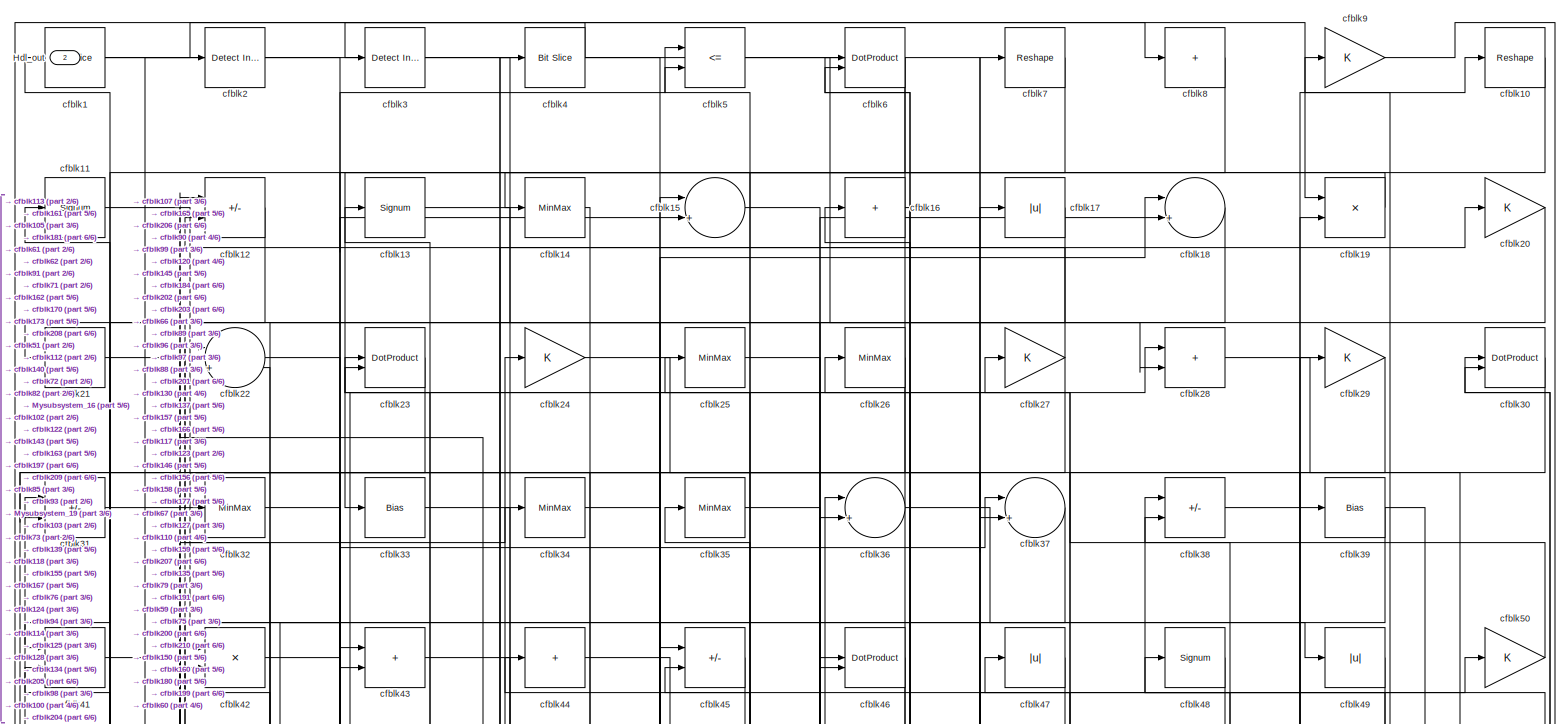
[diagram: root canvas - part 1/6, full width, top band]
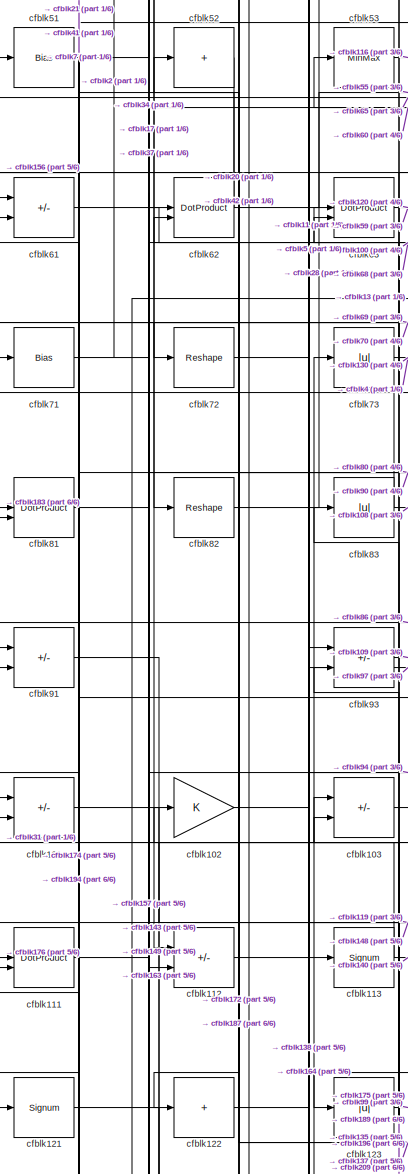
[diagram: root canvas - part 2/6, middle left region]
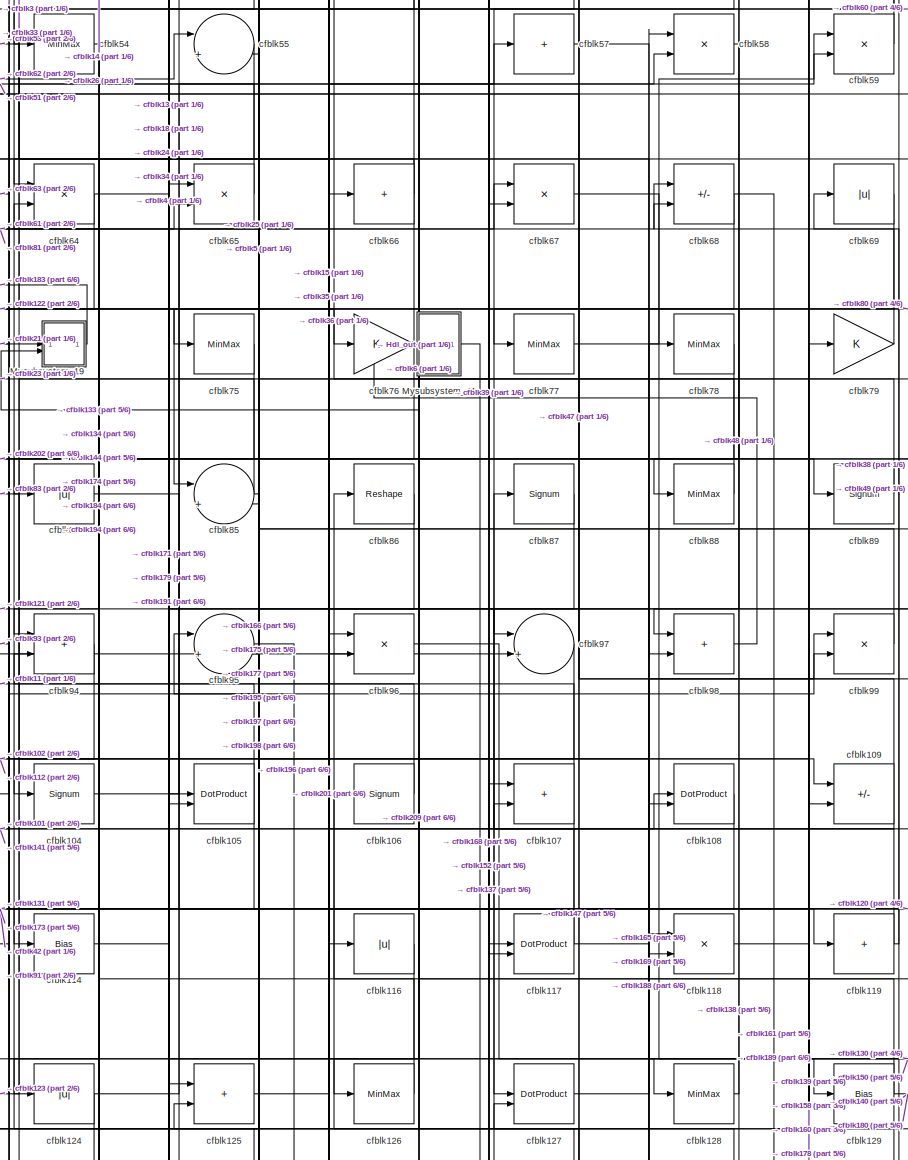
[diagram: root canvas - part 3/6, central region]
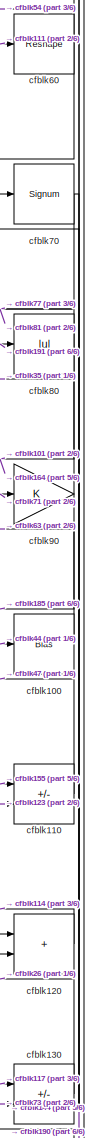
[diagram: root canvas - part 4/6, middle right region]
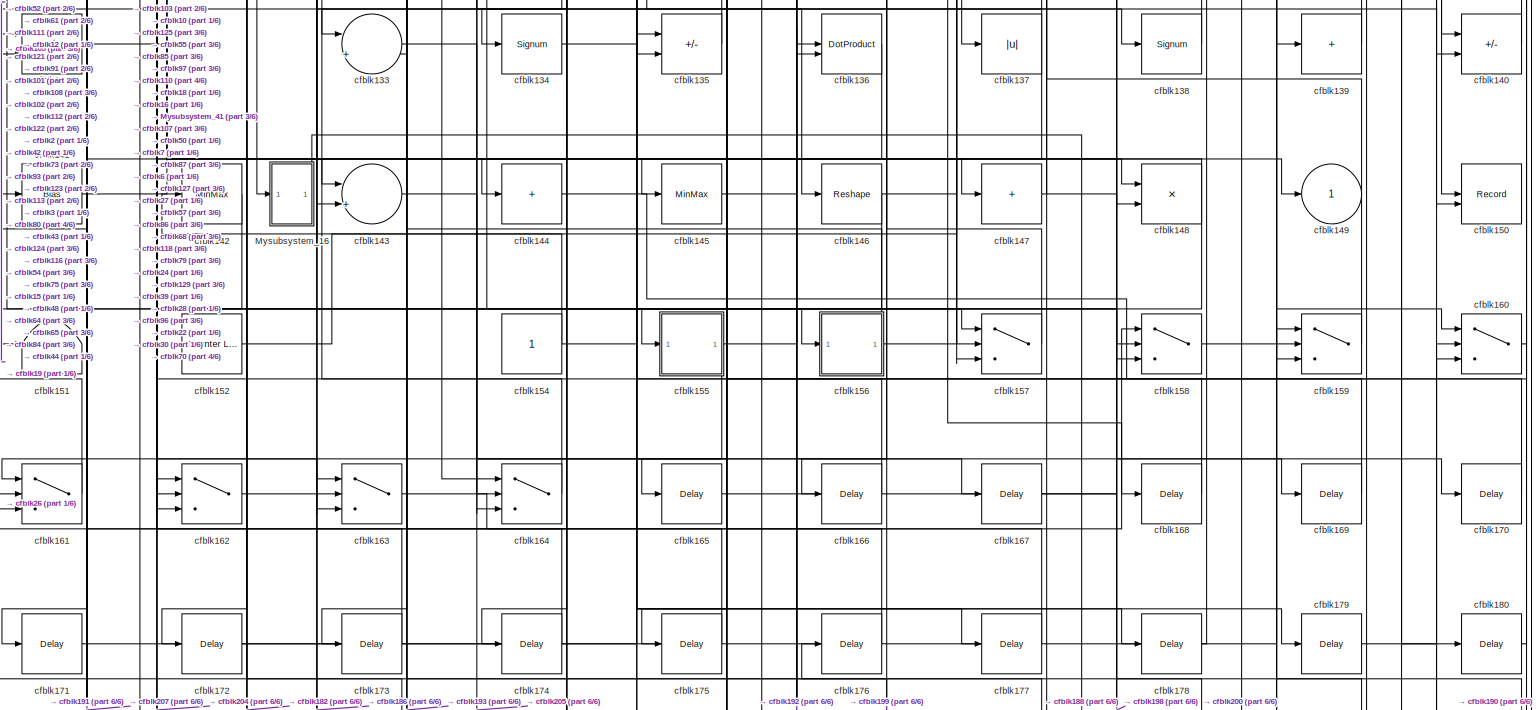
[diagram: root canvas - part 5/6, full width, bottom band]
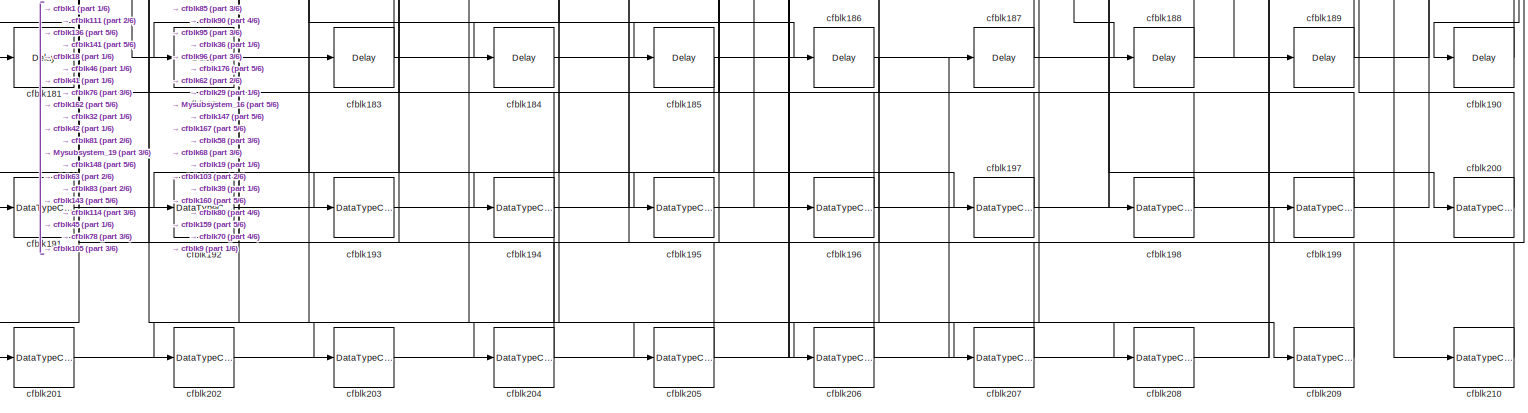
[diagram: root canvas - part 6/6, full width, bottom band]
MODEL slx_f002d62f03bd
KIND model
CONFIG AbsTol = auto
CONFIG EnableMultiTasking = off
CONFIG FixedStep = auto
CONFIG MaxStep = auto
CONFIG MinStep = auto
CONFIG RelTol = 1e-3
CONFIG SampleTimeConstraint = Unconstrained
CONFIG SolverName = VariableStepAuto
CONFIG StartTime = 0.0
CONFIG StopTime = 10.0
BLOCK [Outport] Hdl_out
  OutDataTypeStr = uint8
  Port = 2
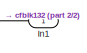
[diagram: Mysubsystem_16 - part 1/2, top right region]
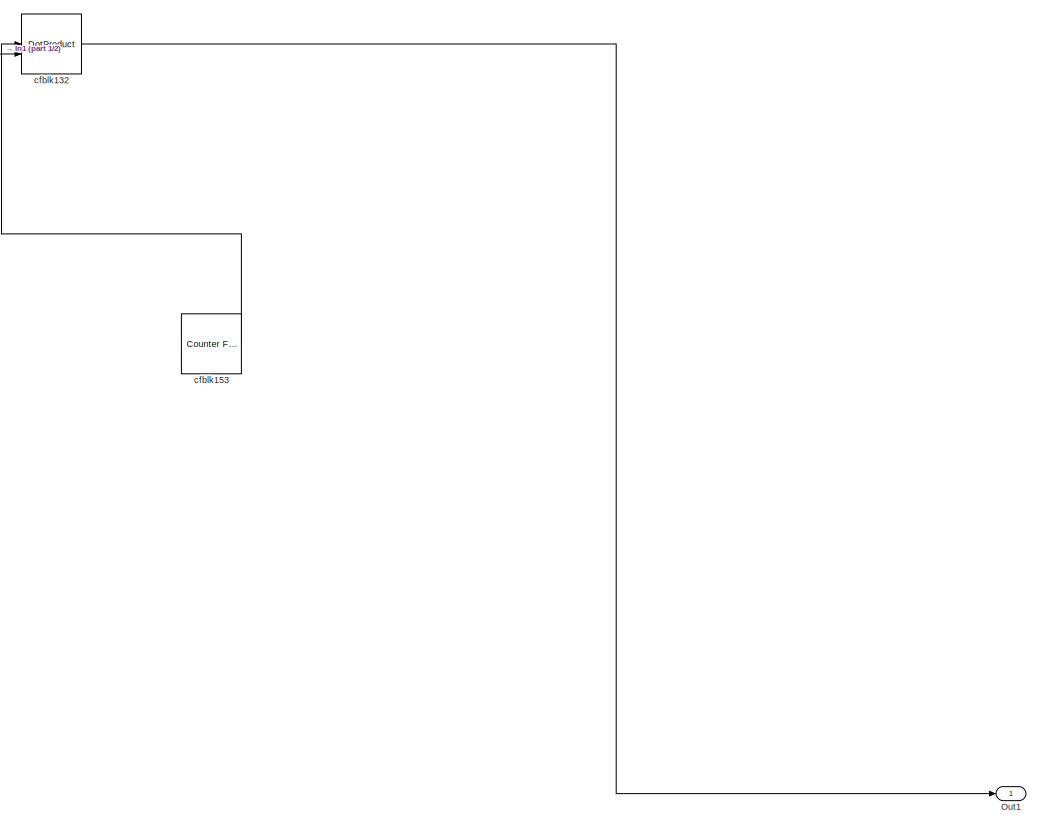
[diagram: Mysubsystem_16 - part 2/2, full width, bottom band]
BLOCK [SubSystem] Mysubsystem_16
  RTWFcnName = Mysubsystem_16
  RTWFcnNameOpts = User specified
  RTWFileNameOpts = Use function name
  RTWSystemCode = Reusable function
  TreatAsAtomicUnit = on
BLOCK [Inport] Mysubsystem_16/In1
BLOCK [Outport] Mysubsystem_16/Out1
BLOCK [DotProduct] Mysubsystem_16/cfblk132
  OutDataTypeStr = Inherit: Inherit via internal rule
BLOCK [Reference] Mysubsystem_16/cfblk153  REF=hdlsllib/Sources/Counter
Free-Running
  SourceBlock = hdlsllib/Sources/Counter\nFree-Running
  SourceType = Counter Free-Running
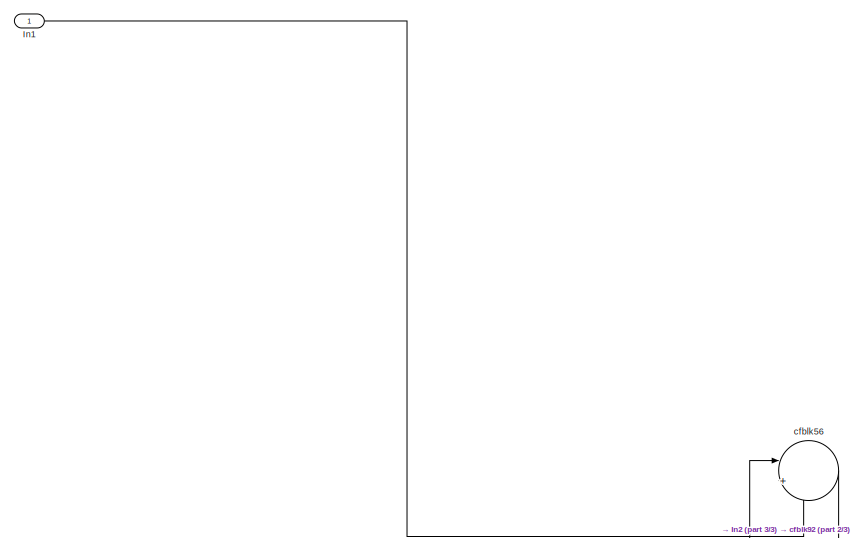
[diagram: Mysubsystem_19 - part 1/3, full width, top band]
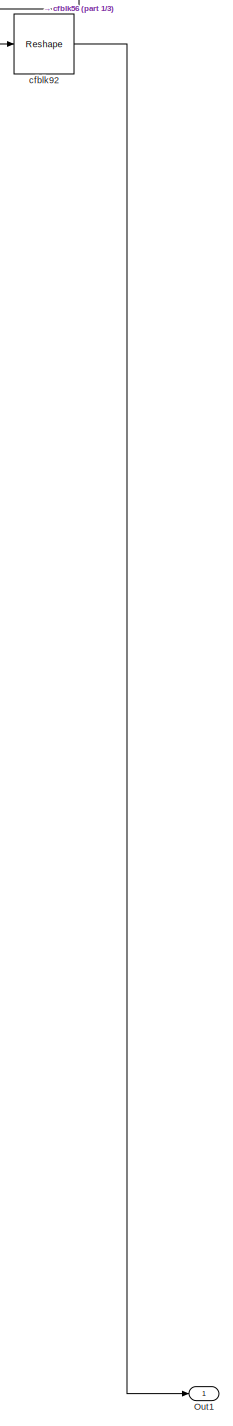
[diagram: Mysubsystem_19 - part 2/3, middle left region]
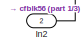
[diagram: Mysubsystem_19 - part 3/3, bottom right region]
BLOCK [SubSystem] Mysubsystem_19
  RTWFcnName = Mysubsystem_19
  RTWFcnNameOpts = User specified
  RTWFileNameOpts = Use function name
  RTWSystemCode = Reusable function
  TreatAsAtomicUnit = on
BLOCK [Inport] Mysubsystem_19/In1
BLOCK [Inport] Mysubsystem_19/In2
  Port = 2
BLOCK [Outport] Mysubsystem_19/Out1
BLOCK [Sum] Mysubsystem_19/cfblk56
  Inputs = |++
BLOCK [Reshape] Mysubsystem_19/cfblk92
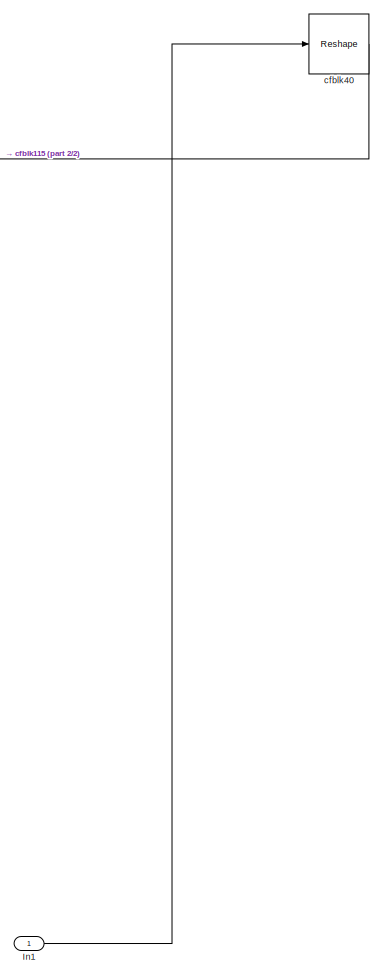
[diagram: Mysubsystem_41 - part 1/2, top right region]
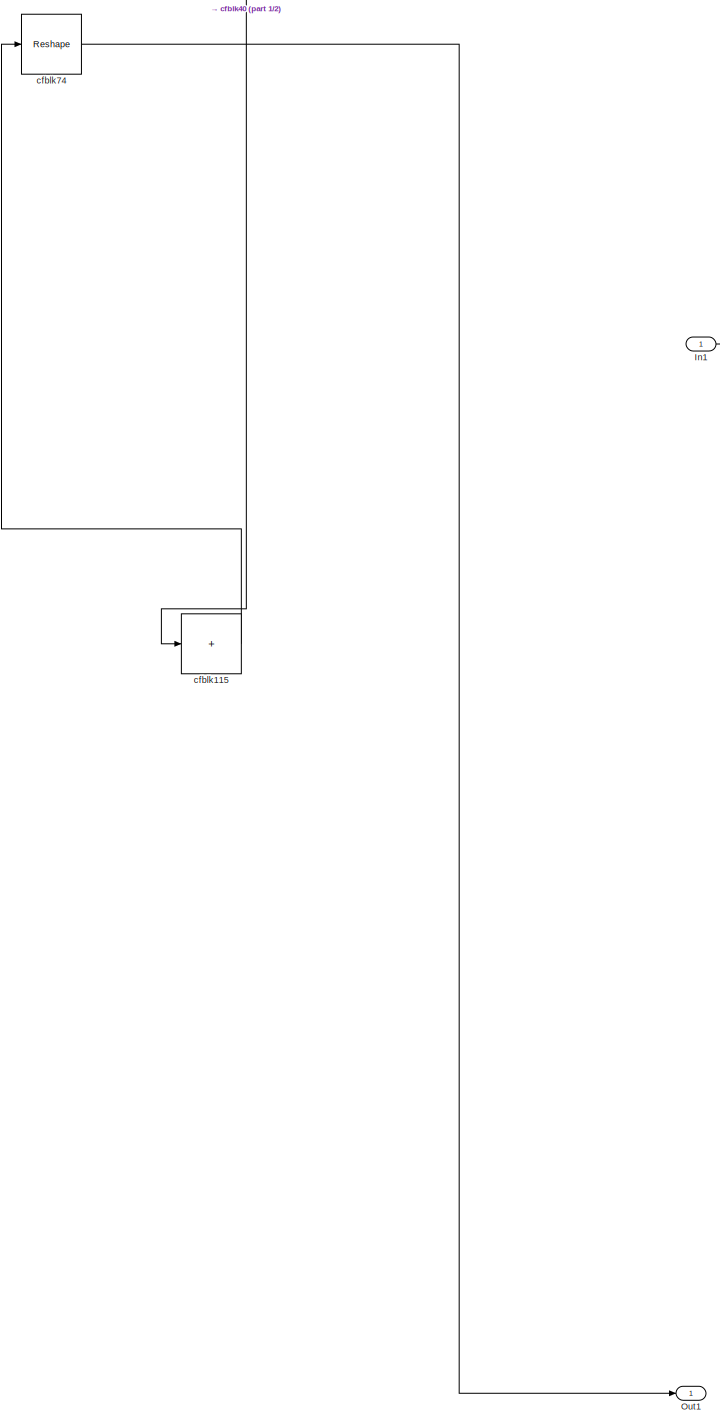
[diagram: Mysubsystem_41 - part 2/2, central region]
BLOCK [SubSystem] Mysubsystem_41
  RTWFcnName = Mysubsystem_41
  RTWFcnNameOpts = User specified
  RTWFileNameOpts = Use function name
  RTWSystemCode = Reusable function
  TreatAsAtomicUnit = on
BLOCK [Inport] Mysubsystem_41/In1
BLOCK [Outport] Mysubsystem_41/Out1
BLOCK [Sum] Mysubsystem_41/cfblk115
  IconShape = rectangular
  Inputs = +
BLOCK [Reshape] Mysubsystem_41/cfblk40
BLOCK [Reshape] Mysubsystem_41/cfblk74
BLOCK [Reference] cfblk1  REF=hdlsllib/Logic and Bit
Operations/Bit Slice
  SourceBlock = hdlsllib/Logic and Bit\nOperations/Bit Slice
  SourceType = Bit Slice
BLOCK [Reshape] cfblk10
BLOCK [Bias] cfblk100
  Bias = 0.0
  SaturateOnIntegerOverflow = off
BLOCK [Sum] cfblk101
  IconShape = rectangular
  Inputs = +-
  OutDataTypeStr = uint8
BLOCK [Gain] cfblk102
  OutDataTypeStr = uint8
BLOCK [Sum] cfblk103
  IconShape = rectangular
  Inputs = +-
  OutDataTypeStr = uint8
BLOCK [Signum] cfblk104
BLOCK [DotProduct] cfblk105
  OutDataTypeStr = uint8
BLOCK [Signum] cfblk106
BLOCK [Sum] cfblk107
  IconShape = rectangular
  OutDataTypeStr = uint8
BLOCK [DotProduct] cfblk108
  OutDataTypeStr = uint8
BLOCK [Sum] cfblk109
  IconShape = rectangular
  Inputs = +-
  OutDataTypeStr = uint8
BLOCK [Signum] cfblk11
BLOCK [Sum] cfblk110
  IconShape = rectangular
  Inputs = +-
  OutDataTypeStr = uint8
BLOCK [DotProduct] cfblk111
  OutDataTypeStr = uint8
BLOCK [Sum] cfblk112
  IconShape = rectangular
  Inputs = +-
  OutDataTypeStr = uint8
BLOCK [Signum] cfblk113
BLOCK [Bias] cfblk114
  Bias = 0.0
  SaturateOnIntegerOverflow = off
BLOCK [Abs] cfblk116
  OutDataTypeStr = uint8
  SaturateOnIntegerOverflow = off
BLOCK [DotProduct] cfblk117
  OutDataTypeStr = uint8
BLOCK [Product] cfblk118
  Inputs = */
  OutDataTypeStr = uint8
  RndMeth = Zero
  SaturateOnIntegerOverflow = on
BLOCK [Sum] cfblk119
  IconShape = rectangular
  Inputs = +
  OutDataTypeStr = uint8
BLOCK [Sum] cfblk12
  IconShape = rectangular
  Inputs = +-
  OutDataTypeStr = uint8
BLOCK [Sum] cfblk120
  IconShape = rectangular
  OutDataTypeStr = uint8
BLOCK [Signum] cfblk121
BLOCK [Sum] cfblk122
  IconShape = rectangular
  Inputs = +
  OutDataTypeStr = uint8
BLOCK [Abs] cfblk123
  OutDataTypeStr = uint8
  SaturateOnIntegerOverflow = off
BLOCK [Abs] cfblk124
  OutDataTypeStr = uint8
  SaturateOnIntegerOverflow = off
BLOCK [Sum] cfblk125
  IconShape = rectangular
  OutDataTypeStr = uint8
BLOCK [MinMax] cfblk126
  OutDataTypeStr = uint8
BLOCK [DotProduct] cfblk127
  OutDataTypeStr = uint8
BLOCK [MinMax] cfblk128
  OutDataTypeStr = uint8
BLOCK [Bias] cfblk129
  Bias = 0.0
  SaturateOnIntegerOverflow = off
BLOCK [Signum] cfblk13
BLOCK [Sum] cfblk130
  IconShape = rectangular
  Inputs = +-
  OutDataTypeStr = uint8
BLOCK [Sum] cfblk131
  IconShape = rectangular
  Inputs = +-
  OutDataTypeStr = uint8
BLOCK [Sum] cfblk133
  Inputs = |++
  OutDataTypeStr = uint8
BLOCK [Signum] cfblk134
BLOCK [Sum] cfblk135
  IconShape = rectangular
  Inputs = +-
  OutDataTypeStr = uint8
BLOCK [DotProduct] cfblk136
  OutDataTypeStr = uint8
BLOCK [Abs] cfblk137
  OutDataTypeStr = uint8
  SaturateOnIntegerOverflow = off
BLOCK [Signum] cfblk138
BLOCK [Sum] cfblk139
  IconShape = rectangular
  Inputs = +
  OutDataTypeStr = uint8
BLOCK [MinMax] cfblk14
  OutDataTypeStr = uint8
BLOCK [Sum] cfblk140
  IconShape = rectangular
  Inputs = +-
  OutDataTypeStr = uint8
BLOCK [Bias] cfblk141
  Bias = 0.0
  SaturateOnIntegerOverflow = off
BLOCK [MinMax] cfblk142
  OutDataTypeStr = uint8
BLOCK [Sum] cfblk143
  Inputs = |++
  OutDataTypeStr = uint8
BLOCK [Sum] cfblk144
  IconShape = rectangular
  Inputs = +
  OutDataTypeStr = uint8
BLOCK [MinMax] cfblk145
  OutDataTypeStr = uint8
BLOCK [Reshape] cfblk146
BLOCK [Sum] cfblk147
  IconShape = rectangular
  Inputs = +
  OutDataTypeStr = uint8
BLOCK [Product] cfblk148
  Inputs = */
  OutDataTypeStr = uint8
  RndMeth = Zero
  SaturateOnIntegerOverflow = on
BLOCK [Outport] cfblk149
  OutDataTypeStr = uint8
  VectorParamsAs1DForOutWhenUnconnected = off
BLOCK [Sum] cfblk15
  Inputs = |++
  OutDataTypeStr = uint8
BLOCK [Record] cfblk150
  CompatibilityTag = XY
  FileSettingsInternal = {"entries":[{"content":{"excelSettings":{"content":{},"type":"Streamout.ExcelSettings"}},"type":"Streamout.FileSettingStorage","uuid":""}],"packageUris":["http:\/\/schema.mathworks.com\/mf0\/streamout_blocks\/R2020a"],"version":"1.0"}
  Layout = [1 1]
  SignalsInternal = {"entries":[{"content":{"signals":[{"content":{"blockPath":[],"dimensions":[1],"domain":"","lineColor":"#a2142f","plots":[1],"port":1,"signalID":61229,"signalName":"cfblk96"},"type":"RecordBlkView.Signal","uuid":""},{"content":{"blockPath":[],"dimensions":[1],"domain":"","lineColor":"#139fff","plots":[1],"port":2,"signalID":61232,"signalName":"cfblk28"},"type":"RecordBlkView.Signal","uuid":""}]},"...<+142ch>
  VisualizationBindings = {"xyplotplugin":{"info":[{"series":[{"bindingParametersList":[{"parameter":"X-Axis","signalID":61229,"signalName":"cfblk96"},{"parameter":"Y-Axis","signalID":61232,"signalName":"cfblk28"}],"seriesID":53168}],"subplotID":1}]}}
  st = -1
BLOCK [Terminator] cfblk151
BLOCK [Reference] cfblk152  REF=hdlsllib/Sources/Counter
Limited
  SourceBlock = hdlsllib/Sources/Counter\nLimited
  SourceType = Counter Limited
BLOCK [Constant] cfblk154
  OutDataTypeStr = uint8
  SampleTime = -1
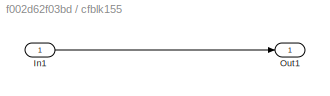
BLOCK [SubSystem] cfblk155
  LibrarySourceBlock = hdlsllib/Ports &\nSubsystems/Subsystem
BLOCK [Inport] cfblk155/In1
BLOCK [Outport] cfblk155/Out1
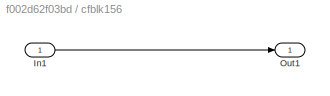
BLOCK [SubSystem] cfblk156
  LibrarySourceBlock = hdlsllib/Ports &\nSubsystems/Subsystem
BLOCK [Inport] cfblk156/In1
BLOCK [Outport] cfblk156/Out1
BLOCK [Switch] cfblk157
  InputSameDT = off
  OutDataTypeStr = uint8
  SaturateOnIntegerOverflow = off
BLOCK [Switch] cfblk158
  InputSameDT = off
  OutDataTypeStr = uint8
  SaturateOnIntegerOverflow = off
BLOCK [Switch] cfblk159
  InputSameDT = off
  OutDataTypeStr = uint8
  SaturateOnIntegerOverflow = off
BLOCK [Sum] cfblk16
  IconShape = rectangular
  Inputs = +
  OutDataTypeStr = uint8
BLOCK [Switch] cfblk160
  InputSameDT = off
  OutDataTypeStr = uint8
  SaturateOnIntegerOverflow = off
BLOCK [Switch] cfblk161
  InputSameDT = off
  OutDataTypeStr = uint8
  SaturateOnIntegerOverflow = off
BLOCK [Switch] cfblk162
  InputSameDT = off
  OutDataTypeStr = uint8
  SaturateOnIntegerOverflow = off
BLOCK [Switch] cfblk163
  InputSameDT = off
  OutDataTypeStr = uint8
  SaturateOnIntegerOverflow = off
BLOCK [Switch] cfblk164
  InputSameDT = off
  OutDataTypeStr = uint8
  SaturateOnIntegerOverflow = off
BLOCK [Delay] cfblk165
  InputPortMap = u0
  SampleTime = 1
BLOCK [Delay] cfblk166
  InputPortMap = u0
  SampleTime = 1
BLOCK [Delay] cfblk167
  InputPortMap = u0
  SampleTime = 1
BLOCK [Delay] cfblk168
  InputPortMap = u0
  SampleTime = 1
BLOCK [Delay] cfblk169
  InputPortMap = u0
  SampleTime = 1
BLOCK [Abs] cfblk17
  OutDataTypeStr = uint8
  SaturateOnIntegerOverflow = off
BLOCK [Delay] cfblk170
  InputPortMap = u0
  SampleTime = 1
BLOCK [Delay] cfblk171
  InputPortMap = u0
  SampleTime = 1
BLOCK [Delay] cfblk172
  InputPortMap = u0
  SampleTime = 1
BLOCK [Delay] cfblk173
  InputPortMap = u0
  SampleTime = 1
BLOCK [Delay] cfblk174
  InputPortMap = u0
  SampleTime = 1
BLOCK [Delay] cfblk175
  InputPortMap = u0
  SampleTime = 1
BLOCK [Delay] cfblk176
  InputPortMap = u0
  SampleTime = 1
BLOCK [Delay] cfblk177
  InputPortMap = u0
  SampleTime = 1
BLOCK [Delay] cfblk178
  InputPortMap = u0
  SampleTime = 1
BLOCK [Delay] cfblk179
  InputPortMap = u0
  SampleTime = 1
BLOCK [Sum] cfblk18
  Inputs = |++
  OutDataTypeStr = uint8
BLOCK [Delay] cfblk180
  InputPortMap = u0
  SampleTime = 1
BLOCK [Delay] cfblk181
  InputPortMap = u0
  SampleTime = 1
BLOCK [Delay] cfblk182
  InputPortMap = u0
  SampleTime = 1
BLOCK [Delay] cfblk183
  InputPortMap = u0
  SampleTime = 1
BLOCK [Delay] cfblk184
  InputPortMap = u0
  SampleTime = 1
BLOCK [Delay] cfblk185
  InputPortMap = u0
  SampleTime = 1
BLOCK [Delay] cfblk186
  InputPortMap = u0
  SampleTime = 1
BLOCK [Delay] cfblk187
  InputPortMap = u0
  SampleTime = 1
BLOCK [Delay] cfblk188
  InputPortMap = u0
  SampleTime = 1
BLOCK [Delay] cfblk189
  InputPortMap = u0
  SampleTime = 1
BLOCK [Product] cfblk19
  Inputs = */
  OutDataTypeStr = uint8
  RndMeth = Zero
  SaturateOnIntegerOverflow = on
BLOCK [Delay] cfblk190
  InputPortMap = u0
  SampleTime = 1
BLOCK [DataTypeConversion] cfblk191
  OutDataTypeStr = uint8
  RndMeth = Floor
  SaturateOnIntegerOverflow = off
BLOCK [DataTypeConversion] cfblk192
  OutDataTypeStr = uint8
  RndMeth = Floor
  SaturateOnIntegerOverflow = off
BLOCK [DataTypeConversion] cfblk193
  OutDataTypeStr = uint8
  RndMeth = Floor
  SaturateOnIntegerOverflow = off
BLOCK [DataTypeConversion] cfblk194
  OutDataTypeStr = uint8
  RndMeth = Floor
  SaturateOnIntegerOverflow = off
BLOCK [DataTypeConversion] cfblk195
  OutDataTypeStr = uint8
  RndMeth = Floor
  SaturateOnIntegerOverflow = off
BLOCK [DataTypeConversion] cfblk196
  OutDataTypeStr = uint8
  RndMeth = Floor
  SaturateOnIntegerOverflow = off
BLOCK [DataTypeConversion] cfblk197
  OutDataTypeStr = uint8
  RndMeth = Floor
  SaturateOnIntegerOverflow = off
BLOCK [DataTypeConversion] cfblk198
  OutDataTypeStr = uint8
  RndMeth = Floor
  SaturateOnIntegerOverflow = off
BLOCK [DataTypeConversion] cfblk199
  OutDataTypeStr = uint8
  RndMeth = Floor
  SaturateOnIntegerOverflow = off
BLOCK [Reference] cfblk2  REF=simulink/Logic and Bit
Operations/Detect
Increase
  LibrarySourceBlock = hdlsllib/Logic and Bit\nOperations/Detect\nIncrease
  SourceBlock = simulink/Logic and Bit\nOperations/Detect\nIncrease
  SourceType = Detect Increase
BLOCK [Gain] cfblk20
  OutDataTypeStr = uint8
BLOCK [DataTypeConversion] cfblk200
  OutDataTypeStr = uint8
  RndMeth = Floor
  SaturateOnIntegerOverflow = off
BLOCK [DataTypeConversion] cfblk201
  OutDataTypeStr = uint8
  RndMeth = Floor
  SaturateOnIntegerOverflow = off
BLOCK [DataTypeConversion] cfblk202
  OutDataTypeStr = uint8
  RndMeth = Floor
  SaturateOnIntegerOverflow = off
BLOCK [DataTypeConversion] cfblk203
  OutDataTypeStr = uint8
  RndMeth = Floor
  SaturateOnIntegerOverflow = off
BLOCK [DataTypeConversion] cfblk204
  OutDataTypeStr = uint8
  RndMeth = Floor
  SaturateOnIntegerOverflow = off
BLOCK [DataTypeConversion] cfblk205
  OutDataTypeStr = uint8
  RndMeth = Floor
  SaturateOnIntegerOverflow = off
BLOCK [DataTypeConversion] cfblk206
  OutDataTypeStr = uint8
  RndMeth = Floor
  SaturateOnIntegerOverflow = off
BLOCK [DataTypeConversion] cfblk207
  OutDataTypeStr = uint8
  RndMeth = Floor
  SaturateOnIntegerOverflow = off
BLOCK [DataTypeConversion] cfblk208
  OutDataTypeStr = uint8
  RndMeth = Floor
  SaturateOnIntegerOverflow = off
BLOCK [DataTypeConversion] cfblk209
  OutDataTypeStr = uint8
  RndMeth = Floor
  SaturateOnIntegerOverflow = off
BLOCK [Sum] cfblk21
  IconShape = rectangular
  Inputs = +
  OutDataTypeStr = uint8
BLOCK [DataTypeConversion] cfblk210
  OutDataTypeStr = uint8
  RndMeth = Floor
  SaturateOnIntegerOverflow = off
BLOCK [Sum] cfblk22
  Inputs = |++
  OutDataTypeStr = uint8
BLOCK [DotProduct] cfblk23
  OutDataTypeStr = uint8
BLOCK [Gain] cfblk24
  OutDataTypeStr = uint8
BLOCK [MinMax] cfblk25
  OutDataTypeStr = uint8
BLOCK [MinMax] cfblk26
  OutDataTypeStr = uint8
BLOCK [Gain] cfblk27
  OutDataTypeStr = uint8
BLOCK [Sum] cfblk28
  IconShape = rectangular
  OutDataTypeStr = uint8
BLOCK [Gain] cfblk29
  OutDataTypeStr = uint8
BLOCK [Reference] cfblk3  REF=simulink/Logic and Bit
Operations/Detect
Increase
  LibrarySourceBlock = hdlsllib/Logic and Bit\nOperations/Detect\nIncrease
  SourceBlock = simulink/Logic and Bit\nOperations/Detect\nIncrease
  SourceType = Detect Increase
BLOCK [DotProduct] cfblk30
  OutDataTypeStr = uint8
BLOCK [Sum] cfblk31
  IconShape = rectangular
  Inputs = +-
  OutDataTypeStr = uint8
BLOCK [MinMax] cfblk32
  OutDataTypeStr = uint8
BLOCK [Bias] cfblk33
  Bias = 0.0
  SaturateOnIntegerOverflow = off
BLOCK [MinMax] cfblk34
  OutDataTypeStr = uint8
BLOCK [MinMax] cfblk35
  OutDataTypeStr = uint8
BLOCK [Sum] cfblk36
  Inputs = |++
  OutDataTypeStr = uint8
BLOCK [Sum] cfblk37
  Inputs = |++
  OutDataTypeStr = uint8
BLOCK [Sum] cfblk38
  IconShape = rectangular
  Inputs = +-
  OutDataTypeStr = uint8
BLOCK [Bias] cfblk39
  Bias = 0.0
  SaturateOnIntegerOverflow = off
BLOCK [Reference] cfblk4  REF=hdlsllib/Logic and Bit
Operations/Bit Slice
  SourceBlock = hdlsllib/Logic and Bit\nOperations/Bit Slice
  SourceType = Bit Slice
BLOCK [Sum] cfblk41
  IconShape = rectangular
  OutDataTypeStr = uint8
BLOCK [Product] cfblk42
  Inputs = */
  OutDataTypeStr = uint8
  RndMeth = Zero
  SaturateOnIntegerOverflow = on
BLOCK [Sum] cfblk43
  IconShape = rectangular
  OutDataTypeStr = uint8
BLOCK [Sum] cfblk44
  IconShape = rectangular
  Inputs = +
  OutDataTypeStr = uint8
BLOCK [Sum] cfblk45
  IconShape = rectangular
  Inputs = +-
  OutDataTypeStr = uint8
BLOCK [DotProduct] cfblk46
  OutDataTypeStr = uint8
BLOCK [Abs] cfblk47
  OutDataTypeStr = uint8
  SaturateOnIntegerOverflow = off
BLOCK [Signum] cfblk48
BLOCK [Abs] cfblk49
  OutDataTypeStr = uint8
  SaturateOnIntegerOverflow = off
BLOCK [RelationalOperator] cfblk5
  InputSameDT = off
  Operator = <=
  OutDataTypeStr = boolean
BLOCK [Gain] cfblk50
  OutDataTypeStr = uint8
BLOCK [Bias] cfblk51
  Bias = 0.0
  SaturateOnIntegerOverflow = off
BLOCK [Sum] cfblk52
  IconShape = rectangular
  Inputs = +
  OutDataTypeStr = uint8
BLOCK [MinMax] cfblk53
  OutDataTypeStr = uint8
BLOCK [MinMax] cfblk54
  OutDataTypeStr = uint8
BLOCK [Sum] cfblk55
  Inputs = |++
  OutDataTypeStr = uint8
BLOCK [Sum] cfblk57
  IconShape = rectangular
  Inputs = +
  OutDataTypeStr = uint8
BLOCK [Product] cfblk58
  Inputs = */
  OutDataTypeStr = uint8
  RndMeth = Zero
  SaturateOnIntegerOverflow = on
BLOCK [Product] cfblk59
  Inputs = */
  OutDataTypeStr = uint8
  RndMeth = Zero
  SaturateOnIntegerOverflow = on
BLOCK [DotProduct] cfblk6
  OutDataTypeStr = uint8
BLOCK [Reshape] cfblk60
BLOCK [Sum] cfblk61
  IconShape = rectangular
  Inputs = +-
  OutDataTypeStr = uint8
BLOCK [DotProduct] cfblk62
  OutDataTypeStr = uint8
BLOCK [DotProduct] cfblk63
  OutDataTypeStr = uint8
BLOCK [Product] cfblk64
  Inputs = */
  OutDataTypeStr = uint8
  RndMeth = Zero
  SaturateOnIntegerOverflow = on
BLOCK [Product] cfblk65
  Inputs = */
  OutDataTypeStr = uint8
  RndMeth = Zero
  SaturateOnIntegerOverflow = on
BLOCK [Sum] cfblk66
  IconShape = rectangular
  Inputs = +
  OutDataTypeStr = uint8
BLOCK [Product] cfblk67
  Inputs = */
  OutDataTypeStr = uint8
  RndMeth = Zero
  SaturateOnIntegerOverflow = on
BLOCK [Sum] cfblk68
  IconShape = rectangular
  Inputs = +-
  OutDataTypeStr = uint8
BLOCK [Abs] cfblk69
  OutDataTypeStr = uint8
  SaturateOnIntegerOverflow = off
BLOCK [Reshape] cfblk7
BLOCK [Signum] cfblk70
BLOCK [Bias] cfblk71
  Bias = 0.0
  SaturateOnIntegerOverflow = off
BLOCK [Reshape] cfblk72
BLOCK [Abs] cfblk73
  OutDataTypeStr = uint8
  SaturateOnIntegerOverflow = off
BLOCK [MinMax] cfblk75
  OutDataTypeStr = uint8
BLOCK [Gain] cfblk76
  OutDataTypeStr = uint8
BLOCK [MinMax] cfblk77
  OutDataTypeStr = uint8
BLOCK [MinMax] cfblk78
  OutDataTypeStr = uint8
BLOCK [Gain] cfblk79
  OutDataTypeStr = uint8
BLOCK [Sum] cfblk8
  IconShape = rectangular
  Inputs = +
  OutDataTypeStr = uint8
BLOCK [Abs] cfblk80
  OutDataTypeStr = uint8
  SaturateOnIntegerOverflow = off
BLOCK [DotProduct] cfblk81
  OutDataTypeStr = uint8
BLOCK [Reshape] cfblk82
BLOCK [Abs] cfblk83
  OutDataTypeStr = uint8
  SaturateOnIntegerOverflow = off
BLOCK [Abs] cfblk84
  OutDataTypeStr = uint8
  SaturateOnIntegerOverflow = off
BLOCK [Sum] cfblk85
  Inputs = |++
  OutDataTypeStr = uint8
BLOCK [Reshape] cfblk86
BLOCK [Signum] cfblk87
BLOCK [MinMax] cfblk88
  OutDataTypeStr = uint8
BLOCK [Signum] cfblk89
BLOCK [Gain] cfblk9
  OutDataTypeStr = uint8
BLOCK [Gain] cfblk90
  OutDataTypeStr = uint8
BLOCK [Sum] cfblk91
  IconShape = rectangular
  Inputs = +-
  OutDataTypeStr = uint8
BLOCK [Sum] cfblk93
  IconShape = rectangular
  Inputs = +-
  OutDataTypeStr = uint8
BLOCK [Sum] cfblk94
  IconShape = rectangular
  OutDataTypeStr = uint8
BLOCK [Sum] cfblk95
  Inputs = |++
  OutDataTypeStr = uint8
BLOCK [Product] cfblk96
  Inputs = */
  OutDataTypeStr = uint8
  RndMeth = Zero
  SaturateOnIntegerOverflow = on
BLOCK [Sum] cfblk97
  Inputs = |++
  OutDataTypeStr = uint8
BLOCK [Sum] cfblk98
  IconShape = rectangular
  OutDataTypeStr = uint8
BLOCK [Product] cfblk99
  Inputs = */
  OutDataTypeStr = uint8
  RndMeth = Zero
  SaturateOnIntegerOverflow = on
LINE Mysubsystem_16/In1:1 -> Mysubsystem_16/cfblk132:2
LINE Mysubsystem_16/cfblk132:1 -> Mysubsystem_16/Out1:1
LINE Mysubsystem_16/cfblk153:1 -> Mysubsystem_16/cfblk132:1
LINE Mysubsystem_16:1 -> cfblk188:1
LINE Mysubsystem_19/In1:1 -> Mysubsystem_19/cfblk56:2
LINE Mysubsystem_19/In2:1 -> Mysubsystem_19/cfblk56:1
LINE Mysubsystem_19/cfblk56:1 -> Mysubsystem_19/cfblk92:1
LINE Mysubsystem_19/cfblk92:1 -> Mysubsystem_19/Out1:1
LINE Mysubsystem_19:1 -> cfblk183:1
LINE Mysubsystem_41/In1:1 -> Mysubsystem_41/cfblk40:1
LINE Mysubsystem_41/cfblk115:1 -> Mysubsystem_41/cfblk74:1
LINE Mysubsystem_41/cfblk40:1 -> Mysubsystem_41/cfblk115:1
LINE Mysubsystem_41/cfblk74:1 -> Mysubsystem_41/Out1:1
LINE Mysubsystem_41:1 -> cfblk168:1
LINE cfblk100:1 -> cfblk63:1
LINE cfblk101:1 -> cfblk143:1
NET cfblk102:1 -> cfblk109:1, cfblk172:1, cfblk37:1, cfblk97:2
LINE cfblk103:1 -> cfblk20:1
LINE cfblk104:1 -> cfblk67:1
NET cfblk105:1 -> cfblk11:1, cfblk131:2
LINE cfblk106:1 -> cfblk94:2
NET cfblk107:1 -> cfblk173:1, cfblk25:1
LINE cfblk108:1 -> cfblk126:1
NET cfblk109:1 -> cfblk107:2, cfblk53:1
LINE cfblk10:1 -> cfblk165:1
LINE cfblk110:1 -> cfblk47:1
NET cfblk111:1 -> cfblk157:1, cfblk60:1
LINE cfblk112:1 -> cfblk138:1
NET cfblk113:1 -> cfblk140:2, cfblk31:1
NET cfblk114:1 -> cfblk184:1, cfblk18:1
NET cfblk116:1 -> cfblk133:2, cfblk174:1
NET cfblk117:1 -> cfblk130:1, cfblk87:1
LINE cfblk118:1 -> cfblk160:1
NET cfblk119:1 -> cfblk101:2, cfblk69:1
NET cfblk11:1 -> cfblk113:1, cfblk37:2
LINE cfblk120:1 -> cfblk114:1
NET cfblk121:1 -> cfblk149:1, cfblk163:3
NET cfblk122:1 -> cfblk148:2, cfblk5:2
NET cfblk123:1 -> cfblk164:1, cfblk17:1, cfblk99:2
NET cfblk124:1 -> cfblk133:1, cfblk57:1
LINE cfblk125:1 -> cfblk58:2
LINE cfblk126:1 -> cfblk106:1
LINE cfblk127:1 -> cfblk99:1
LINE cfblk128:1 -> cfblk48:1
NET cfblk129:1 -> cfblk140:1, cfblk180:1, cfblk64:2
LINE cfblk12:1 -> cfblk21:1
LINE cfblk130:1 -> cfblk26:1
LINE cfblk131:1 -> cfblk147:1
LINE cfblk133:1 -> cfblk170:1
NET cfblk134:1 -> cfblk158:2, cfblk15:1
LINE cfblk135:1 -> cfblk103:1
LINE cfblk136:1 -> cfblk191:1
NET cfblk137:1 -> cfblk131:1, cfblk157:3, cfblk52:1, cfblk6:2
LINE cfblk138:1 -> cfblk86:1
LINE cfblk139:1 -> cfblk24:1
LINE cfblk13:1 -> cfblk125:1
LINE cfblk140:1 -> cfblk22:2
LINE cfblk141:1 -> cfblk108:1
LINE cfblk142:1 -> cfblk151:1
LINE cfblk143:1 -> cfblk205:1
LINE cfblk144:1 -> cfblk70:1
LINE cfblk145:1 -> cfblk18:2
NET cfblk146:1 -> cfblk162:3, cfblk7:1
NET cfblk147:1 -> cfblk127:2, cfblk200:1
NET cfblk148:1 -> cfblk145:1, cfblk182:1, cfblk193:1
LINE cfblk14:1 -> cfblk94:1
LINE cfblk152:1 -> cfblk107:1
NET cfblk154:1 -> cfblk142:1, cfblk157:2
LINE cfblk155/In1:1 -> cfblk155/Out1:1
NET cfblk155:1 -> cfblk110:1, cfblk161:1, cfblk164:3
LINE cfblk156/In1:1 -> cfblk156/Out1:1
NET cfblk156:1 -> cfblk102:1, cfblk50:1
LINE cfblk157:1 -> cfblk16:1
LINE cfblk158:1 -> cfblk79:1
LINE cfblk159:1 -> cfblk27:1
LINE cfblk15:1 -> cfblk66:1
LINE cfblk160:1 -> cfblk30:1
LINE cfblk161:1 -> cfblk19:1
LINE cfblk162:1 -> cfblk186:1
LINE cfblk163:1 -> cfblk158:1
LINE cfblk164:1 -> cfblk73:1
LINE cfblk165:1 -> cfblk118:2
LINE cfblk166:1 -> cfblk125:2
LINE cfblk167:1 -> cfblk198:1
LINE cfblk168:1 -> cfblk135:1
LINE cfblk169:1 -> cfblk85:2
LINE cfblk16:1 -> cfblk166:1
LINE cfblk170:1 -> cfblk42:1
LINE cfblk171:1 -> cfblk65:1
LINE cfblk172:1 -> cfblk159:1
LINE cfblk173:1 -> cfblk12:1
LINE cfblk174:1 -> cfblk61:2
LINE cfblk175:1 -> cfblk93:2
LINE cfblk176:1 -> cfblk111:1
LINE cfblk177:1 -> cfblk55:2
LINE cfblk178:1 -> cfblk68:2
LINE cfblk179:1 -> cfblk160:3
LINE cfblk17:1 -> cfblk82:1
LINE cfblk180:1 -> cfblk30:2
LINE cfblk181:1 -> cfblk1:1
LINE cfblk182:1 -> cfblk160:2
LINE cfblk183:1 -> cfblk81:1
LINE cfblk184:1 -> cfblk36:2
LINE cfblk185:1 -> cfblk192:1
LINE cfblk186:1 -> cfblk206:1
LINE cfblk187:1 -> cfblk62:2
LINE cfblk188:1 -> cfblk58:1
LINE cfblk189:1 -> cfblk103:2
NET cfblk18:1 -> cfblk181:1, cfblk96:2
LINE cfblk190:1 -> cfblk159:2
NET cfblk191:1 -> cfblk105:1, cfblk105:2, cfblk39:1, cfblk80:1
LINE cfblk192:1 -> cfblk136:1
LINE cfblk193:1 -> cfblk136:2
NET cfblk194:1 -> cfblk111:2, cfblk203:1
LINE cfblk195:1 -> cfblk78:1
NET cfblk196:1 -> cfblk62:1, cfblk63:2
LINE cfblk197:1 -> cfblk95:1
LINE cfblk198:1 -> cfblk95:2
LINE cfblk199:1 -> cfblk176:1
LINE cfblk19:1 -> cfblk14:1
LINE cfblk1:1 -> cfblk8:1
LINE cfblk200:1 -> cfblk9:1
NET cfblk201:1 -> cfblk19:2, cfblk96:1
LINE cfblk202:1 -> cfblk46:1
LINE cfblk203:1 -> cfblk46:2
NET cfblk204:1 -> cfblk162:1, cfblk187:1
LINE cfblk205:1 -> cfblk45:1
LINE cfblk206:1 -> cfblk45:2
LINE cfblk207:1 -> cfblk141:1
LINE cfblk208:1 -> cfblk29:1
NET cfblk209:1 -> Mysubsystem_19:2, cfblk83:1
LINE cfblk20:1 -> cfblk72:1
LINE cfblk210:1 -> cfblk32:1
NET cfblk21:1 -> Mysubsystem_19:1, cfblk61:1
LINE cfblk22:1 -> cfblk43:1
LINE cfblk23:1 -> cfblk31:2
NET cfblk24:1 -> cfblk117:1, cfblk177:1
LINE cfblk25:1 -> cfblk89:1
NET cfblk26:1 -> cfblk124:1, cfblk161:3
NET cfblk27:1 -> cfblk12:2, cfblk162:2, cfblk163:2
LINE cfblk28:1 -> cfblk150:2
LINE cfblk29:1 -> cfblk207:1
NET cfblk2:1 -> cfblk143:2, cfblk15:2
NET cfblk30:1 -> cfblk159:3, cfblk41:1
LINE cfblk31:1 -> cfblk22:1
LINE cfblk32:1 -> cfblk209:1
LINE cfblk33:1 -> cfblk118:1
LINE cfblk34:1 -> cfblk128:1
NET cfblk35:1 -> cfblk120:2, cfblk97:1
LINE cfblk36:1 -> cfblk49:1
LINE cfblk37:1 -> cfblk112:1
LINE cfblk38:1 -> cfblk10:1
NET cfblk39:1 -> Mysubsystem_16:1, cfblk210:1, cfblk67:2
NET cfblk3:1 -> cfblk167:1, cfblk76:1
LINE cfblk41:1 -> cfblk208:1
NET cfblk42:1 -> cfblk117:2, cfblk163:1, cfblk197:1
LINE cfblk43:1 -> cfblk155:1
NET cfblk44:1 -> cfblk100:1, cfblk146:1
LINE cfblk45:1 -> cfblk204:1
LINE cfblk46:1 -> cfblk201:1
LINE cfblk47:1 -> cfblk127:1
LINE cfblk48:1 -> cfblk135:2
LINE cfblk49:1 -> cfblk75:1
NET cfblk4:1 -> cfblk3:1, cfblk98:2
LINE cfblk50:1 -> cfblk23:1
LINE cfblk51:1 -> cfblk34:1
LINE cfblk52:1 -> cfblk156:1
LINE cfblk53:1 -> cfblk116:1
LINE cfblk54:1 -> cfblk134:1
NET cfblk55:1 -> cfblk104:1, cfblk91:2
LINE cfblk57:1 -> cfblk169:1
LINE cfblk58:1 -> cfblk88:1
LINE cfblk59:1 -> cfblk38:1
LINE cfblk5:1 -> cfblk28:2
NET cfblk60:1 -> cfblk110:2, cfblk123:1, cfblk44:1, cfblk54:1
LINE cfblk61:1 -> cfblk65:2
NET cfblk62:1 -> cfblk41:2, cfblk55:1
NET cfblk63:1 -> cfblk120:1, cfblk59:2
NET cfblk64:1 -> cfblk171:1, cfblk179:1, cfblk84:1
LINE cfblk65:1 -> cfblk51:1
LINE cfblk66:1 -> cfblk64:1
LINE cfblk67:1 -> cfblk129:1
NET cfblk68:1 -> cfblk161:2, cfblk189:1, cfblk85:1
NET cfblk69:1 -> cfblk122:1, cfblk98:1
NET cfblk6:1 -> cfblk158:3, cfblk43:2
NET cfblk70:1 -> cfblk190:1, cfblk81:2
NET cfblk71:1 -> cfblk2:1, cfblk90:1
LINE cfblk72:1 -> cfblk93:1
NET cfblk73:1 -> cfblk130:2, cfblk4:1
LINE cfblk75:1 -> cfblk144:1
NET cfblk76:1 -> Hdl_out:1, cfblk202:1
LINE cfblk77:1 -> cfblk59:1
LINE cfblk78:1 -> cfblk194:1
LINE cfblk79:1 -> cfblk38:2
LINE cfblk7:1 -> cfblk91:1
NET cfblk80:1 -> cfblk101:1, cfblk164:2, cfblk77:1
LINE cfblk81:1 -> cfblk68:1
NET cfblk82:1 -> cfblk28:1, cfblk42:2
NET cfblk83:1 -> cfblk108:2, cfblk71:1
NET cfblk84:1 -> cfblk139:1, cfblk178:1
NET cfblk85:1 -> cfblk195:1, cfblk23:2
LINE cfblk86:1 -> cfblk121:1
LINE cfblk87:1 -> cfblk137:1
LINE cfblk88:1 -> cfblk36:1
LINE cfblk89:1 -> cfblk6:1
LINE cfblk8:1 -> cfblk33:1
NET cfblk90:1 -> cfblk185:1, cfblk35:1
NET cfblk91:1 -> cfblk119:1, cfblk148:1
NET cfblk93:1 -> cfblk109:2, cfblk13:1
LINE cfblk94:1 -> cfblk112:2
LINE cfblk95:1 -> cfblk196:1
LINE cfblk96:1 -> cfblk150:1
LINE cfblk97:1 -> cfblk175:1
LINE cfblk98:1 -> Mysubsystem_41:1
LINE cfblk99:1 -> cfblk5:1
LINE cfblk9:1 -> cfblk199:1
note: NET lines group one-source signal fan-out (src -> all destinations, sorted); 1:1 wires keep LINE
